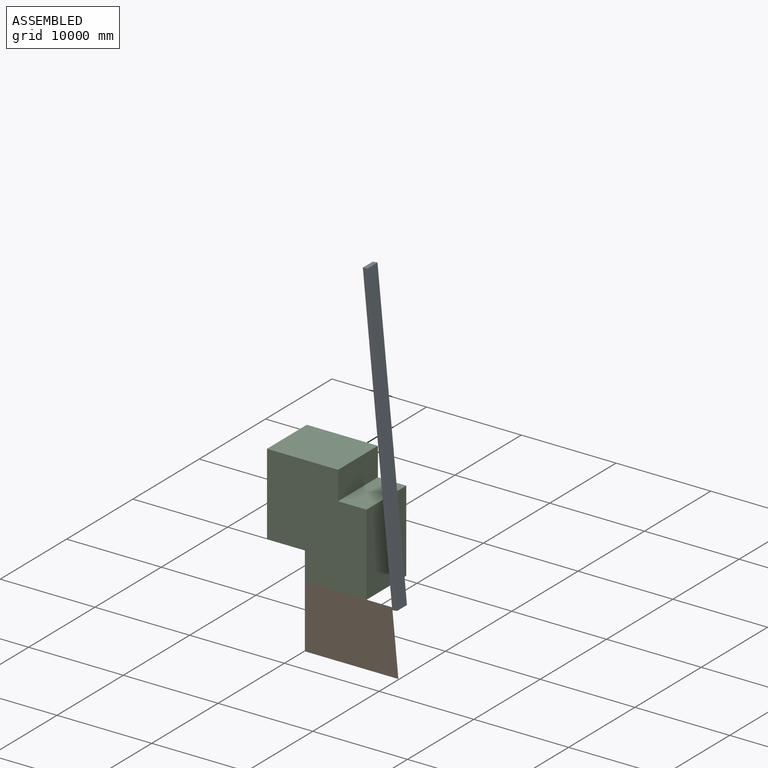
[diagram: assembled view]
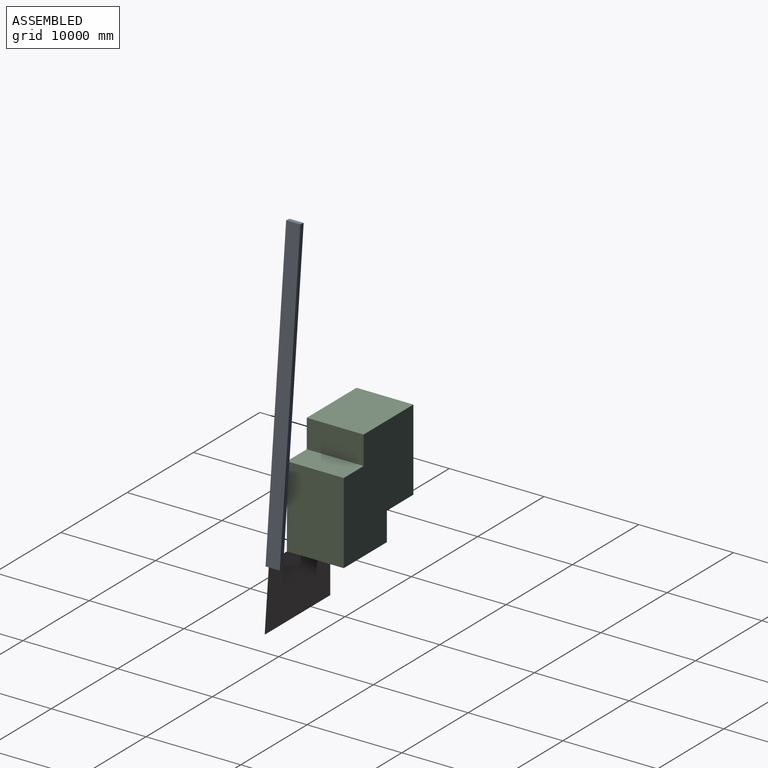
[diagram: assembled view, second angle]
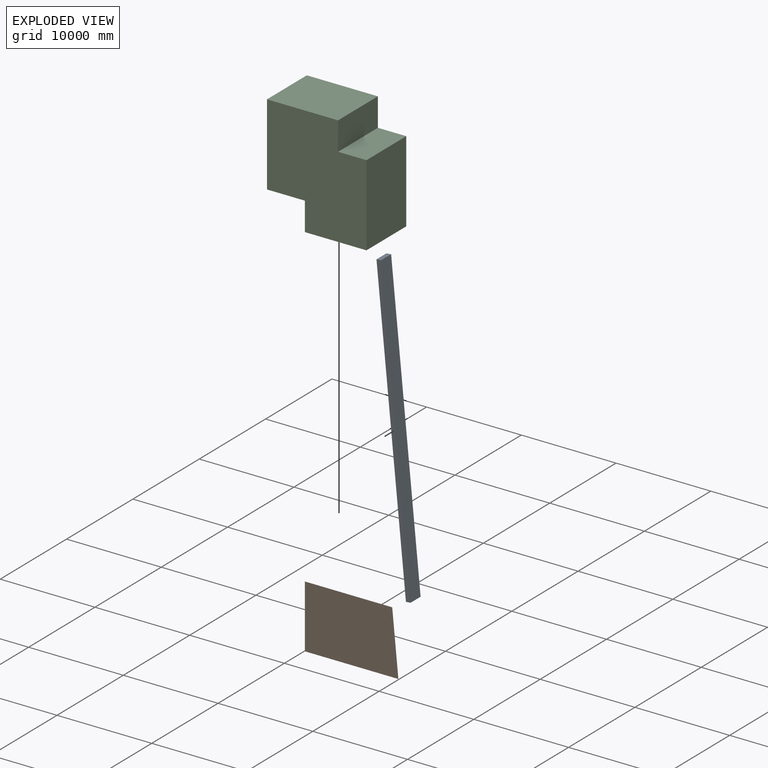
[diagram: exploded view]
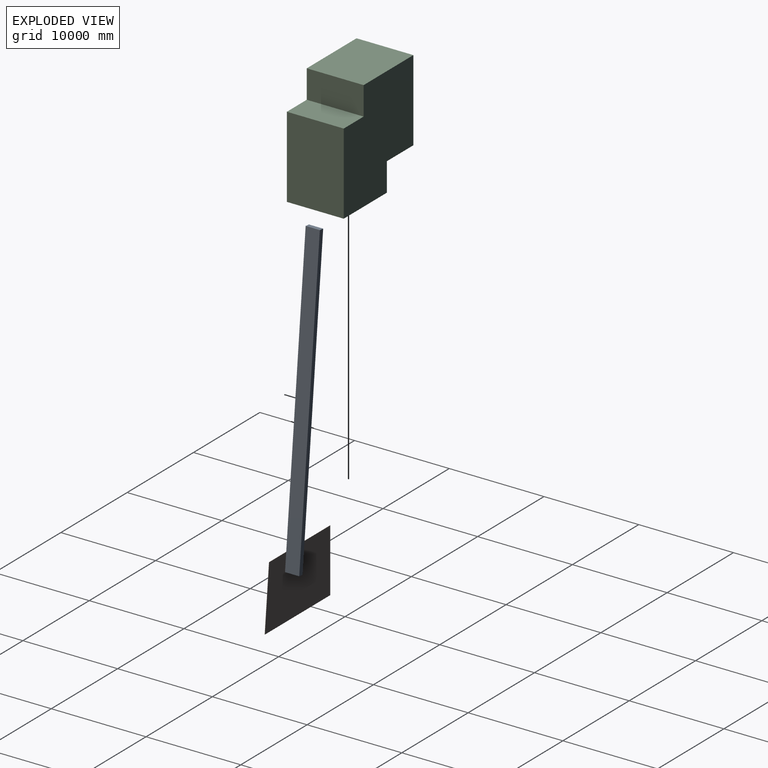
[diagram: exploded view, second angle]
ASSEMBLY  parts=3 mates=5
PART A: 6 faces, bbox 32000x500x1500 mm
  f0: plane 1500x500mm, normal (1,0,0), area 750000mm2, adj f1,f3,f4,f5
  f1: plane 32000x500mm, normal (0,0,1), area 16000000mm2, adj f0,f2,f4,f5
  f2: plane 1500x500mm, normal (-1,0,0), area 750000mm2, adj f1,f3,f4,f5
  f3: plane 32000x500mm, normal (0,0,-1), area 16000000mm2, adj f0,f2,f4,f5
  f4: plane 32000x1500mm, normal (0,-1,0), area 48000000mm2, adj f0,f1,f2,f3
  f5: plane 32000x1500mm, normal (0,1,0), area 48000000mm2, adj f0,f1,f2,f3
PART B: 6 faces, bbox 9850x25x6655 mm
  f0: plane 9200x25mm, normal (0,0,1), area 230000mm2, adj f1,f3,f4,f5
  f1: plane 6655x650mm, normal (-1,0,0.1), area 167166.7mm2, adj f0,f2,f4,f5
  f2: plane 9850x25mm, normal (0,0,-1), area 246250mm2, adj f1,f3,f4,f5
  f3: plane 6655x25mm, normal (1,0,0), area 166375mm2, adj f0,f2,f4,f5
  f4: plane 9850x6655mm, normal (0,-1,0), area 63388875mm2, adj f0,f1,f2,f3
  f5: plane 9850x6655mm, normal (0,1,0), area 63388875mm2, adj f0,f1,f2,f3
PART C: 10 faces, bbox 10500x6000x11600 mm
  f0: plane 8600x6000mm, normal (-1,0,0), area 51600000mm2, adj f1,f7,f8,f9
  f1: plane 6500x6000mm, normal (0,0,-1), area 39000000mm2, adj f0,f2,f8,f9
  f2: plane 6000x3000mm, normal (1,0,0), area 18000000mm2, adj f1,f3,f8,f9
  f3: plane 6000x4000mm, normal (0,0,-1), area 24000000mm2, adj f2,f4,f8,f9
  f4: plane 8600x6000mm, normal (1,0,0), area 51600000mm2, adj f3,f5,f8,f9
  f5: plane 7500x6000mm, normal (0,0,1), area 45000000mm2, adj f4,f6,f8,f9
  f6: plane 6000x3000mm, normal (-1,0,0), area 18000000mm2, adj f5,f7,f8,f9
  f7: plane 6000x3000mm, normal (0,0,1), area 18000000mm2, adj f0,f6,f8,f9
  f8: plane 11600x10500mm, normal (0,-1,0), area 100800000mm2, adj f0,f1,f2,f3,f4,f5,f6,f7
  f9: plane 11600x10500mm, normal (0,1,0), area 100800000mm2, adj f0,f1,f2,f3,f4,f5,f6,f7
PLACE A rot(axis=(-0.61,0.56,0.56),116.8deg) t=(4563.88,3998.34,12554.65)mm
PLACE B rot(axis=(0,0,1),180deg) t=(-3105.64,3248.34,-9770.16)mm fixed
PLACE C rot(axis=(0,0,-1),180deg) t=(-3105.64,3223.34,-9770.16)mm
MATE planar C.f1 <-> B.f0  axis (0,0,-1) through (144.36,6248.34,-3115.16)mm
MATE planar C.f9 <-> B.f5  axis (0,-1,0) through (-1803.55,3248.34,2812.82)mm
MATE planar A.f3 <-> B.f5  axis (0,-1,0) through (4812.7,3248.34,12578.95)mm
MATE planar A.f5 <-> B.f1  axis (-1,0,-0.1) through (4563.88,3998.34,12554.65)mm
MATE planar C.f2 <-> B.f3  axis (-1,0,0) through (-3105.64,6248.34,-1615.16)mm
